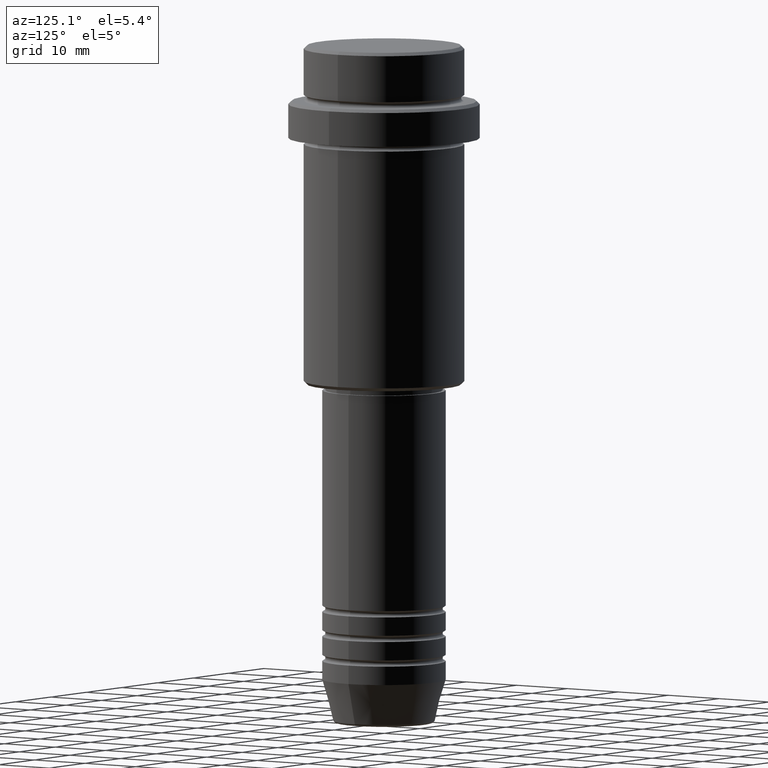
[diagram: clean part render]
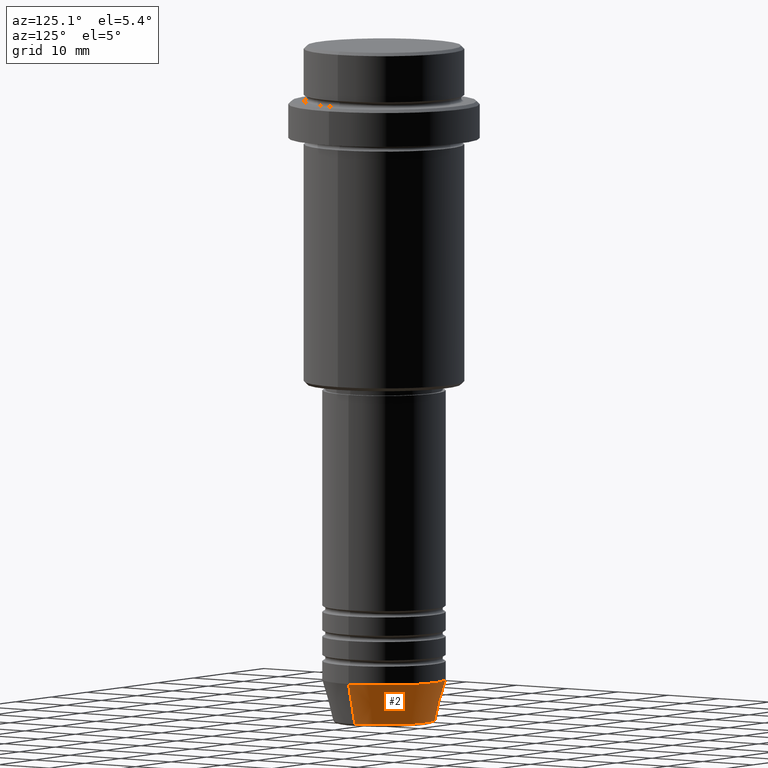
[diagram: same view with one face highlighted and labeled with its STEP entity id]
A machine part, auxiliary view. The second image highlights one B-rep face of the part: STEP entity #2.
In plain terms, the highlighted conical surface has half-angle 15 deg.
Its self-contained STEP definition (entity closure, byte-faithful):
#2 = ADVANCED_FACE ( 'NONE', ( #751 ), #384, .T. ) ;
#15 = DIRECTION ( 'NONE',  ( 1.000000000000000000, 0.000000000000000000, 0.000000000000000000 ) ) ;
#65 = DIRECTION ( 'NONE',  ( -0.000000000000000000, -0.000000000000000000, 1.000000000000000000 ) ) ;
#83 = EDGE_CURVE ( 'NONE', #1363, #369, #739, .T. ) ;
#120 = EDGE_CURVE ( 'NONE', #1151, #396, #533, .T. ) ;
#126 = AXIS2_PLACEMENT_3D ( 'NONE', #584, #65, #364 ) ;
#335 = CARTESIAN_POINT ( 'NONE',  ( 0.000000000000000000, 0.000000000000000000, -103.0000000000000142 ) ) ;
#364 = DIRECTION ( 'NONE',  ( 1.000000000000000000, 0.000000000000000000, 0.000000000000000000 ) ) ;
#369 = VERTEX_POINT ( 'NONE', #1255 ) ;
#384 = CONICAL_SURFACE ( 'NONE', #528, 10.00000000000000000, 0.2617993877991500740 ) ;
#396 = VERTEX_POINT ( 'NONE', #1182 ) ;
#528 = AXIS2_PLACEMENT_3D ( 'NONE', #335, #539, #15 ) ;
#533 = LINE ( 'NONE', #630, #776 ) ;
#539 = DIRECTION ( 'NONE',  ( -0.000000000000000000, -0.000000000000000000, 1.000000000000000000 ) ) ;
#579 = ORIENTED_EDGE ( 'NONE', *, *, #120, .T. ) ;
#584 = CARTESIAN_POINT ( 'NONE',  ( 0.000000000000000000, 0.000000000000000000, -109.6294095225512564 ) ) ;
#627 = CARTESIAN_POINT ( 'NONE',  ( 8.223655072137191269, 0.000000000000000000, -109.6294095225512564 ) ) ;
#630 = CARTESIAN_POINT ( 'NONE',  ( -10.00000000000000000, 1.224646799147353256E-15, -103.0000000000000142 ) ) ;
#712 = DIRECTION ( 'NONE',  ( 1.000000000000000000, 0.000000000000000000, 0.000000000000000000 ) ) ;
#726 = ORIENTED_EDGE ( 'NONE', *, *, #831, .F. ) ;
#732 = CIRCLE ( 'NONE', #1210, 10.00000000000000000 ) ;
#739 = LINE ( 'NONE', #986, #1356 ) ;
#751 = FACE_OUTER_BOUND ( 'NONE', #1226, .T. ) ;
#776 = VECTOR ( 'NONE', #1198, 1000.000000000000000 ) ;
#800 = CIRCLE ( 'NONE', #126, 8.223655072137191269 ) ;
#827 = CARTESIAN_POINT ( 'NONE',  ( 0.000000000000000000, 0.000000000000000000, -103.0000000000000142 ) ) ;
#831 = EDGE_CURVE ( 'NONE', #369, #396, #732, .T. ) ;
#835 = ORIENTED_EDGE ( 'NONE', *, *, #83, .F. ) ;
#986 = CARTESIAN_POINT ( 'NONE',  ( 10.00000000000000000, 0.000000000000000000, -103.0000000000000142 ) ) ;
#1151 = VERTEX_POINT ( 'NONE', #1242 ) ;
#1167 = ORIENTED_EDGE ( 'NONE', *, *, #1243, .T. ) ;
#1182 = CARTESIAN_POINT ( 'NONE',  ( -10.00000000000000000, 1.224646799147353256E-15, -103.0000000000000142 ) ) ;
#1194 = DIRECTION ( 'NONE',  ( 0.2588190451025213501, 0.000000000000000000, 0.9659258262890680902 ) ) ;
#1198 = DIRECTION ( 'NONE',  ( -0.2588190451025213501, 3.169619151431772337E-17, 0.9659258262890680902 ) ) ;
#1210 = AXIS2_PLACEMENT_3D ( 'NONE', #827, #1281, #712 ) ;
#1226 = EDGE_LOOP ( 'NONE', ( #1167, #579, #726, #835 ) ) ;
#1242 = CARTESIAN_POINT ( 'NONE',  ( -8.223655072137191269, 1.115877042642912054E-15, -109.6294095225512564 ) ) ;
#1243 = EDGE_CURVE ( 'NONE', #1363, #1151, #800, .T. ) ;
#1255 = CARTESIAN_POINT ( 'NONE',  ( 10.00000000000000000, 0.000000000000000000, -103.0000000000000142 ) ) ;
#1281 = DIRECTION ( 'NONE',  ( -0.000000000000000000, -0.000000000000000000, 1.000000000000000000 ) ) ;
#1356 = VECTOR ( 'NONE', #1194, 1000.000000000000000 ) ;
#1363 = VERTEX_POINT ( 'NONE', #627 ) ;